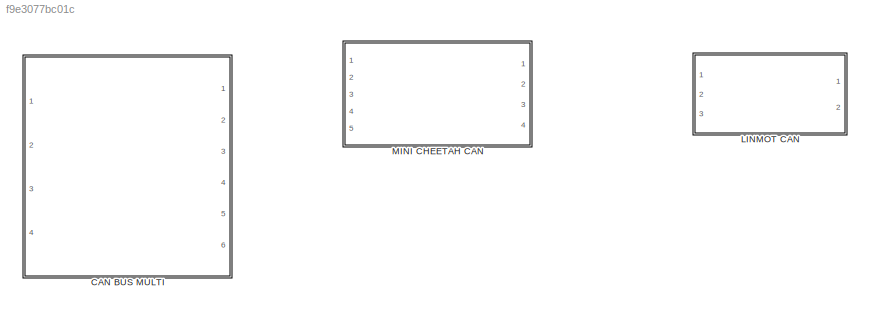
MODEL slx_f9e3077bc01c
KIND library
CONFIG AbsTol = auto
CONFIG EnableMultiTasking = off
CONFIG FixedStep = auto
CONFIG MaxStep = auto
CONFIG MinStep = auto
CONFIG RelTol = 1e-3
CONFIG SampleTimeConstraint = Unconstrained
CONFIG Solver = VariableStepAuto
CONFIG SolverName = VariableStepAuto
CONFIG StartTime = 0.0
CONFIG StopTime = 10.0
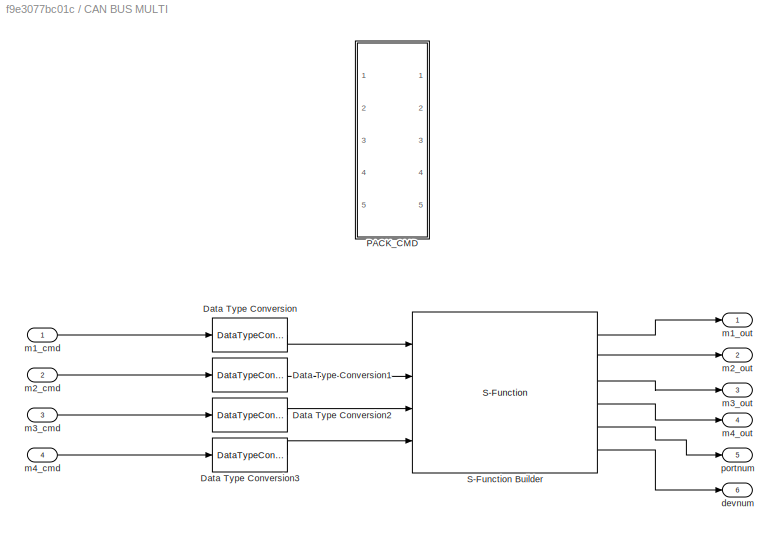
BLOCK [SubSystem] CAN BUS MULTI 
  Ports = [4, 6]
  RequestExecContextInheritance = off
  SystemSampleTime = PAR_SMPLT
  TreatAsAtomicUnit = on
BLOCK [DataTypeConversion] CAN BUS MULTI /Data Type Conversion
  OutDataTypeStr = single
  RndMeth = Floor
  SaturateOnIntegerOverflow = off
BLOCK [DataTypeConversion] CAN BUS MULTI /Data Type Conversion1
  OutDataTypeStr = single
  RndMeth = Floor
  SaturateOnIntegerOverflow = off
BLOCK [DataTypeConversion] CAN BUS MULTI /Data Type Conversion2
  OutDataTypeStr = single
  RndMeth = Floor
  SaturateOnIntegerOverflow = off
BLOCK [DataTypeConversion] CAN BUS MULTI /Data Type Conversion3
  OutDataTypeStr = single
  RndMeth = Floor
  SaturateOnIntegerOverflow = off
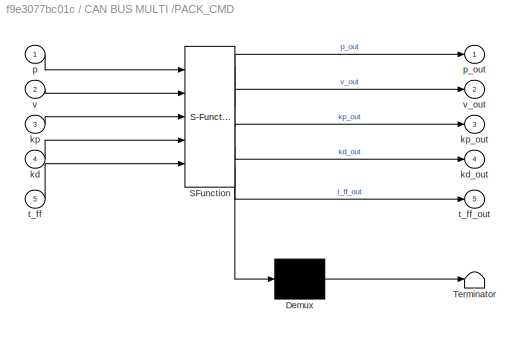
BLOCK [SubSystem] CAN BUS MULTI /PACK_CMD
  Commented = on
  ErrorFcn = Stateflow.Translate.translate
  PermitHierarchicalResolution = ExplicitOnly
  Ports = [5, 5]
  RequestExecContextInheritance = off
  SFBlockType = MATLAB Function
  TreatAsAtomicUnit = on
BLOCK [Demux] CAN BUS MULTI /PACK_CMD/ Demux 
  Outputs = 1
  Ports = [1, 1]
BLOCK [S-Function] CAN BUS MULTI /PACK_CMD/ SFunction 
  EnableBusSupport = off
  FunctionName = sf_sfun
  PortCounts = [5 6]
  Ports = [5, 6]
  SFcnIsStateOwnerBlock = off
  SFunctionDeploymentMode = off
  Tag = Stateflow S-Function can_bus_multi 1
BLOCK [Terminator] CAN BUS MULTI /PACK_CMD/ Terminator 
BLOCK [Inport] CAN BUS MULTI /PACK_CMD/kd
  IconDisplay = Port number
  Port = 4
BLOCK [Outport] CAN BUS MULTI /PACK_CMD/kd_out
  IconDisplay = Port number
  Port = 4
BLOCK [Inport] CAN BUS MULTI /PACK_CMD/kp
  IconDisplay = Port number
  Port = 3
BLOCK [Outport] CAN BUS MULTI /PACK_CMD/kp_out
  IconDisplay = Port number
  Port = 3
BLOCK [Inport] CAN BUS MULTI /PACK_CMD/p
  IconDisplay = Port number
BLOCK [Outport] CAN BUS MULTI /PACK_CMD/p_out
  IconDisplay = Port number
BLOCK [Inport] CAN BUS MULTI /PACK_CMD/t_ff
  IconDisplay = Port number
  Port = 5
BLOCK [Outport] CAN BUS MULTI /PACK_CMD/t_ff_out
  IconDisplay = Port number
  Port = 5
BLOCK [Inport] CAN BUS MULTI /PACK_CMD/v
  IconDisplay = Port number
  Port = 2
BLOCK [Outport] CAN BUS MULTI /PACK_CMD/v_out
  IconDisplay = Port number
  Port = 2
BLOCK [S-Function] CAN BUS MULTI /S-Function Builder
  CopyFcn = set_param(gcbh,'LinkStatus','none')
  EnableBusSupport = off
  FunctionName = CAN_BUS_MULTI_SF
  InitFcn = try, set_param(gcb,'FunctionName','CAN_BUS_MULTI_SF'), end
  OpenFcn = sfunctionwizard(gcbh)
  Parameters = uint8(PAR_DEV_NUM),uint8(PAR_PORT_NUM)
  Ports = [4, 6]
  PreSaveFcn = try, set_param(gcb,'FunctionName','CAN_BUS_MULTI_SF'), end
  SFcnIsStateOwnerBlock = off
  SFunctionDeploymentMode = off
  SFunctionModules = CAN_BUS_MULTI_SF_wrapper
BLOCK [Outport] CAN BUS MULTI /devnum
  IconDisplay = Port number
  Port = 6
BLOCK [Inport] CAN BUS MULTI /m1_cmd
  IconDisplay = Port number
BLOCK [Outport] CAN BUS MULTI /m1_out
  IconDisplay = Port number
BLOCK [Inport] CAN BUS MULTI /m2_cmd
  IconDisplay = Port number
  Port = 2
BLOCK [Outport] CAN BUS MULTI /m2_out
  IconDisplay = Port number
  Port = 2
BLOCK [Inport] CAN BUS MULTI /m3_cmd
  IconDisplay = Port number
  Port = 3
BLOCK [Outport] CAN BUS MULTI /m3_out
  IconDisplay = Port number
  Port = 3
BLOCK [Inport] CAN BUS MULTI /m4_cmd
  IconDisplay = Port number
  Port = 4
BLOCK [Outport] CAN BUS MULTI /m4_out
  IconDisplay = Port number
  Port = 4
BLOCK [Outport] CAN BUS MULTI /portnum
  IconDisplay = Port number
  Port = 5
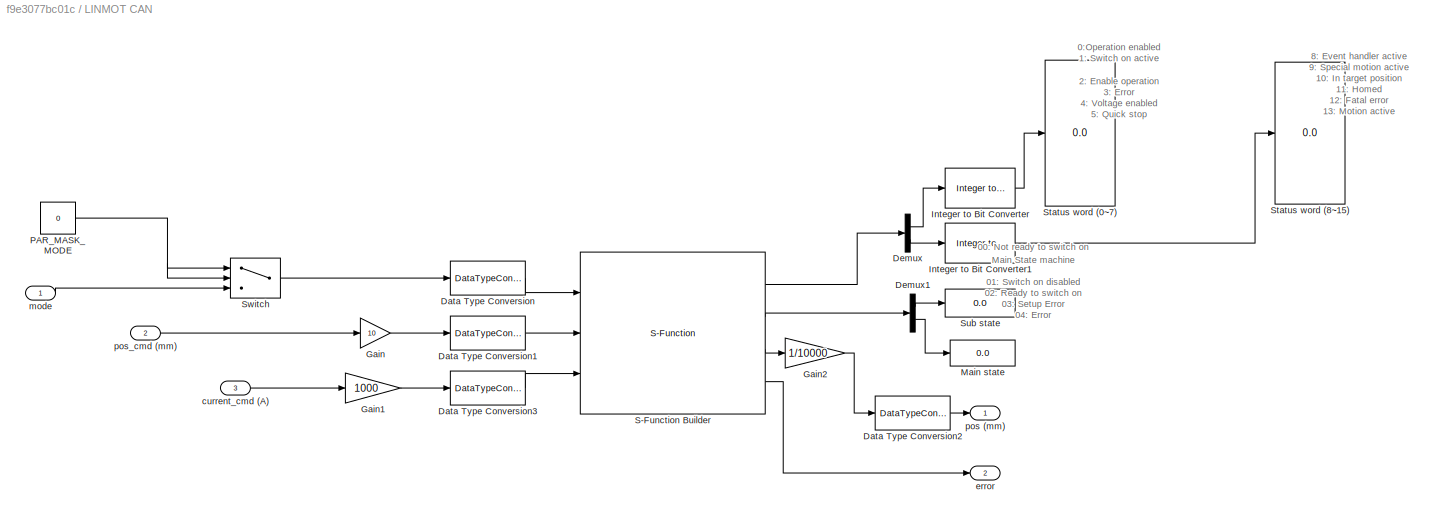
BLOCK [SubSystem] LINMOT CAN
  Ports = [3, 2]
  RequestExecContextInheritance = off
  SystemSampleTime = PAR_SMPLT
  TreatAsAtomicUnit = on
BLOCK [DataTypeConversion] LINMOT CAN/Data Type Conversion
  OutDataTypeStr = uint8
  RndMeth = Floor
  SaturateOnIntegerOverflow = off
BLOCK [DataTypeConversion] LINMOT CAN/Data Type Conversion1
  OutDataTypeStr = int16
  RndMeth = Floor
  SaturateOnIntegerOverflow = off
BLOCK [DataTypeConversion] LINMOT CAN/Data Type Conversion2
  OutDataTypeStr = double
  RndMeth = Floor
  SaturateOnIntegerOverflow = off
BLOCK [DataTypeConversion] LINMOT CAN/Data Type Conversion3
  OutDataTypeStr = int32
  RndMeth = Floor
  SaturateOnIntegerOverflow = off
BLOCK [Demux] LINMOT CAN/Demux
  DisplayOption = bar
  Outputs = 2
  Ports = [1, 2]
BLOCK [Demux] LINMOT CAN/Demux1
  DisplayOption = bar
  Outputs = 2
  Ports = [1, 2]
BLOCK [Gain] LINMOT CAN/Gain
  Gain = 10
  OutDataTypeStr = Inherit: Inherit via internal rule
  ParamDataTypeStr = Inherit: Inherit via internal rule
  SaturateOnIntegerOverflow = off
BLOCK [Gain] LINMOT CAN/Gain1
  Gain = 1000
  OutDataTypeStr = Inherit: Inherit via internal rule
  ParamDataTypeStr = Inherit: Inherit via internal rule
  SaturateOnIntegerOverflow = off
BLOCK [Gain] LINMOT CAN/Gain2
  Gain = 1/10000
  OutDataTypeStr = Inherit: Inherit via internal rule
  ParamDataTypeStr = Inherit: Inherit via internal rule
  SaturateOnIntegerOverflow = off
BLOCK [Reference] LINMOT CAN/Integer to Bit Converter  REF=commutil2/Integer to Bit
Converter
  Ports = [1, 1]
  SourceBlock = commutil2/Integer to Bit\nConverter
  SourceProductBaseCode = CM
  SourceProductName = Communications System Toolbox
  SourceType = Integer to Bit Converter
BLOCK [Reference] LINMOT CAN/Integer to Bit Converter1  REF=commutil2/Integer to Bit
Converter
  Ports = [1, 1]
  SourceBlock = commutil2/Integer to Bit\nConverter
  SourceProductBaseCode = CM
  SourceProductName = Communications System Toolbox
  SourceType = Integer to Bit Converter
BLOCK [Display] LINMOT CAN/Main state
  Decimation = 1
  Ports = [1]
BLOCK [Constant] LINMOT CAN/PAR_MASK_MODE
  SampleTime = -1
  Value = 0
BLOCK [S-Function] LINMOT CAN/S-Function Builder
  CopyFcn = set_param(gcbh,'LinkStatus','none')
  EnableBusSupport = off
  FunctionName = LINMOT_CAN_TEST
  InitFcn = try, set_param(gcb,'FunctionName','LINMOT_CAN_TEST'), end
  OpenFcn = sfunctionwizard(gcbh)
  Parameters = uint8(PAR_PORT_NUM),PAR_MAX_VEL,PAR_ACCEL,PAR_DECEL,uint8(PAR_SAFE)
  Ports = [3, 4]
  PreSaveFcn = try, set_param(gcb,'FunctionName','LINMOT_CAN_TEST'), end
  SFcnIsStateOwnerBlock = off
  SFunctionDeploymentMode = off
  SFunctionModules = LINMOT_CAN_TEST_wrapper
BLOCK [Display] LINMOT CAN/Status word (0~7)
  Decimation = 1
  Ports = [1]
BLOCK [Display] LINMOT CAN/Status word (8~15)
  Decimation = 1
  Ports = [1]
BLOCK [Display] LINMOT CAN/Sub state
  Decimation = 1
  Ports = [1]
BLOCK [Switch] LINMOT CAN/Switch
  Criteria = u2 ~= 0
  InputSameDT = off
  LockScale = on
  SaturateOnIntegerOverflow = off
BLOCK [Inport] LINMOT CAN/current_cmd (A)
  IconDisplay = Port number
  Port = 3
BLOCK [Outport] LINMOT CAN/error
  IconDisplay = Port number
  Port = 2
BLOCK [Inport] LINMOT CAN/mode
  IconDisplay = Port number
BLOCK [Outport] LINMOT CAN/pos (mm)
  IconDisplay = Port number
BLOCK [Inport] LINMOT CAN/pos_cmd (mm)
  IconDisplay = Port number
  Port = 2
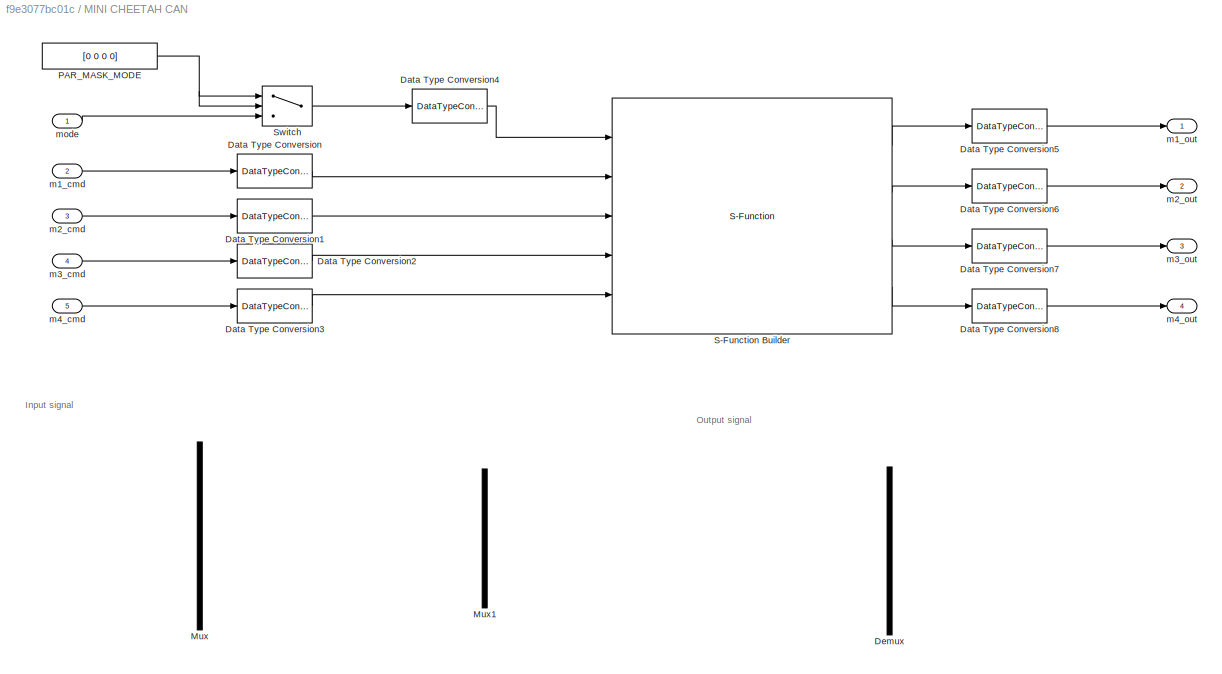
BLOCK [SubSystem] MINI CHEETAH CAN
  MinAlgLoopOccurrences = on
  Ports = [5, 4]
  RequestExecContextInheritance = off
  SystemSampleTime = PAR_SMPLT
  TreatAsAtomicUnit = on
BLOCK [DataTypeConversion] MINI CHEETAH CAN/Data Type Conversion
  OutDataTypeStr = single
  RndMeth = Floor
  SaturateOnIntegerOverflow = off
BLOCK [DataTypeConversion] MINI CHEETAH CAN/Data Type Conversion1
  OutDataTypeStr = single
  RndMeth = Floor
  SaturateOnIntegerOverflow = off
BLOCK [DataTypeConversion] MINI CHEETAH CAN/Data Type Conversion2
  OutDataTypeStr = single
  RndMeth = Floor
  SaturateOnIntegerOverflow = off
BLOCK [DataTypeConversion] MINI CHEETAH CAN/Data Type Conversion3
  OutDataTypeStr = single
  RndMeth = Floor
  SaturateOnIntegerOverflow = off
BLOCK [DataTypeConversion] MINI CHEETAH CAN/Data Type Conversion4
  OutDataTypeStr = uint8
  RndMeth = Floor
  SaturateOnIntegerOverflow = off
BLOCK [DataTypeConversion] MINI CHEETAH CAN/Data Type Conversion5
  OutDataTypeStr = double
  RndMeth = Floor
  SaturateOnIntegerOverflow = off
BLOCK [DataTypeConversion] MINI CHEETAH CAN/Data Type Conversion6
  OutDataTypeStr = double
  RndMeth = Floor
  SaturateOnIntegerOverflow = off
BLOCK [DataTypeConversion] MINI CHEETAH CAN/Data Type Conversion7
  OutDataTypeStr = double
  RndMeth = Floor
  SaturateOnIntegerOverflow = off
BLOCK [DataTypeConversion] MINI CHEETAH CAN/Data Type Conversion8
  OutDataTypeStr = double
  RndMeth = Floor
  SaturateOnIntegerOverflow = off
BLOCK [Demux] MINI CHEETAH CAN/Demux
  Commented = on
  DisplayOption = bar
  Outputs = 3
  Ports = [1, 3]
BLOCK [Mux] MINI CHEETAH CAN/Mux
  Commented = on
  DisplayOption = bar
  Inputs = 5
  Ports = [5, 1]
BLOCK [Mux] MINI CHEETAH CAN/Mux1
  Commented = on
  DisplayOption = bar
  Ports = [4, 1]
BLOCK [Constant] MINI CHEETAH CAN/PAR_MASK_MODE
  Value = [0 0 0 0]
BLOCK [S-Function] MINI CHEETAH CAN/S-Function Builder
  CopyFcn = set_param(gcbh,'LinkStatus','none')
  EnableBusSupport = off
  FunctionName = CAN_BUS_MULTISTATE_SF
  InitFcn = try, set_param(gcb,'FunctionName','CAN_BUS_MULTISTATE_SF'), end
  OpenFcn = sfunctionwizard(gcbh)
  Parameters = uint8(PAR_DEV_NUM),uint8(PAR_PORT_NUM),uint8(PAR_SAFE)
  Ports = [5, 4]
  PreSaveFcn = try, set_param(gcb,'FunctionName','CAN_BUS_MULTISTATE_SF'), end
  SFcnIsStateOwnerBlock = off
  SFunctionDeploymentMode = off
  SFunctionModules = CAN_BUS_MULTISTATE_SF_wrapper
BLOCK [Switch] MINI CHEETAH CAN/Switch
  Criteria = u2 ~= 0
  InputSameDT = off
  SaturateOnIntegerOverflow = off
BLOCK [Inport] MINI CHEETAH CAN/m1_cmd
  IconDisplay = Port number
  Port = 2
BLOCK [Outport] MINI CHEETAH CAN/m1_out
  IconDisplay = Port number
BLOCK [Inport] MINI CHEETAH CAN/m2_cmd
  IconDisplay = Port number
  Port = 3
BLOCK [Outport] MINI CHEETAH CAN/m2_out
  IconDisplay = Port number
  Port = 2
BLOCK [Inport] MINI CHEETAH CAN/m3_cmd
  IconDisplay = Port number
  Port = 4
BLOCK [Outport] MINI CHEETAH CAN/m3_out
  IconDisplay = Port number
  Port = 3
BLOCK [Inport] MINI CHEETAH CAN/m4_cmd
  IconDisplay = Port number
  Port = 5
BLOCK [Outport] MINI CHEETAH CAN/m4_out
  IconDisplay = Port number
  Port = 4
BLOCK [Inport] MINI CHEETAH CAN/mode
  IconDisplay = Port number
ANNOTATION LINMOT CAN: Main State machine 00: Not ready to switch on 01: Switch on disabled 02: Ready to switch on 03: Setup Error 04: Error 05: HW Test 06: Ready to operate 07: - 08: Operation Enabled 09: Homing 10: Clearance check 11: Going to initial position 12: Aborting 13: Freezing 14: Quick stop 15: Going to position 16: Jogging+ 17: Jogging- 18: Linearizing 19: Phase search 20: Special mode 21: Brake delay
ANNOTATION LINMOT CAN: 0:Operation enabled 1: Switch on active 2: Enable operation 3: Error 4: Voltage enabled 5: Quick stop 6: Switch on locked 7: Warning
ANNOTATION LINMOT CAN: 8: Event handler active 9: Special motion active 10: In target position 11: Homed 12: Fatal error 13: Motion active 14: Range indicator 1 15: Range indicator 2
ANNOTATION MINI CHEETAH CAN: Input signal
ANNOTATION MINI CHEETAH CAN: Output signal
CHART CAN BUS MULTI /PACK_CMD states=1 transitions=1
  STATE_LABEL 'eML_blk_kernel()'
  STATE_LABEL 'SCRIPT:\nfunction [p_out, v_out, kp_out, kd_out, t_ff_out] = fcn(p, v, kp, kd, t_ff)\n\n\n\np_out = uint16((p-(-12.5)) * (bitshift(1,16)-1)/(12.5-(-12.5)));\n\nv_out = uint16((v-(-65.0)) * (bitshift(1,12)-1)/(65.0-(-65.0)));\n\nkp_out = uint16((kp-(0.0)) * (bitshift(1,12)-1)/(500.0-(0.0)));\n\nkd_out = uint16((kd-(0.0)) * (bitshift(1,12)-1)/(5.0-(0.0)));\n\nt_ff_out = uint16((t_ff-(-18.0)) * (bitshift(1,12)-1)...<+19ch>'
